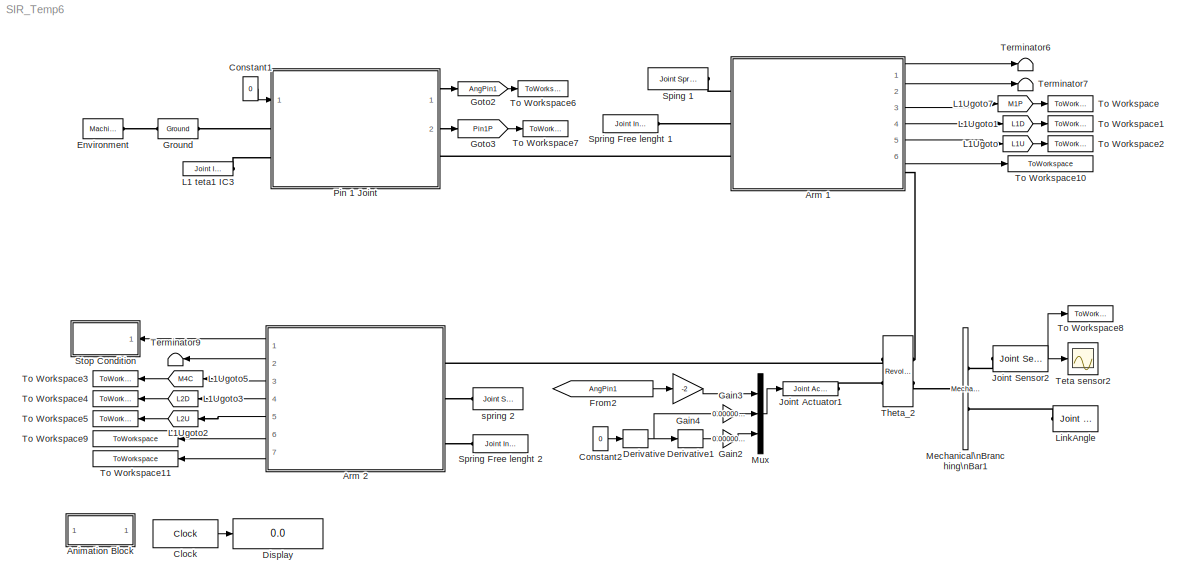
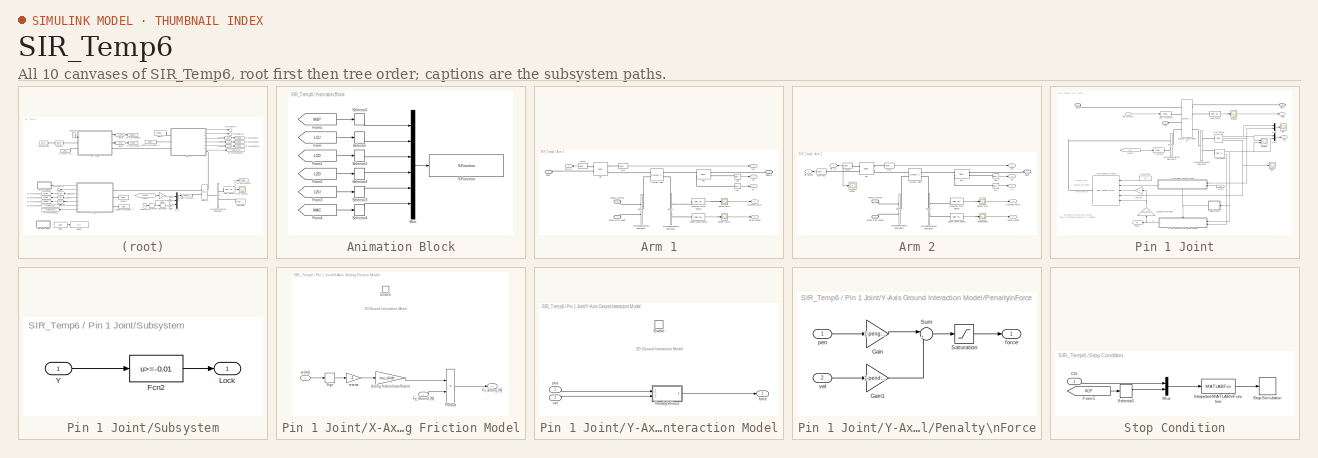
[diagram: thumbnail index - all 10 canvases of the model, root first then tree order]
MODEL SIR_Temp6
KIND model
CONFIG InitFcn = Initialization
BLOCK [SubSystem] Animation Block
  FunctionWithSeparateData = off
  MaskHideContents = off
  MinAlgLoopOccurrences = off
  Opaque = off
  Ports = []
  PropExecContextOutsideSubsystem = off
  RTWSystemCode = Auto
  RequestExecContextInheritance = off
  SID = 179
BLOCK [From] Animation Block/From
  CloseFcn = tagdialog Close
  GotoTag = L1U
  SID = 180
  TagVisibility = global
BLOCK [From] Animation Block/From1
  CloseFcn = tagdialog Close
  GotoTag = L1D
  SID = 181
  TagVisibility = global
BLOCK [From] Animation Block/From2
  CloseFcn = tagdialog Close
  GotoTag = L2D
  SID = 182
  TagVisibility = global
BLOCK [From] Animation Block/From3
  CloseFcn = tagdialog Close
  GotoTag = L2U
  SID = 183
  TagVisibility = global
BLOCK [From] Animation Block/From4
  CloseFcn = tagdialog Close
  GotoTag = M4C
  SID = 184
  TagVisibility = global
BLOCK [From] Animation Block/From5
  CloseFcn = tagdialog Close
  GotoTag = M1P
  SID = 320
  TagVisibility = global
BLOCK [Mux] Animation Block/Mux
  DisplayOption = bar
  Inputs = 6
  Ports = [6, 1]
  SID = 185
BLOCK [S-Function] Animation Block/S-Function
  EnableBusSupport = off
  FunctionName = AnimBotMulti
  Parameters = 0.001
  Ports = [1]
  SID = 186
BLOCK [Selector] Animation Block/Selector
  IndexOptions = Index vector (dialog)
  Indices = [1 2]
  InputPortWidth = 3
  OutputSizes = 1
  Ports = [1, 1]
  SID = 187
BLOCK [Selector] Animation Block/Selector1
  IndexOptions = Index vector (dialog)
  Indices = [1 2]
  InputPortWidth = 3
  OutputSizes = 1
  Ports = [1, 1]
  SID = 188
BLOCK [Selector] Animation Block/Selector2
  IndexOptions = Index vector (dialog)
  Indices = [1 2]
  InputPortWidth = 3
  OutputSizes = 1
  Ports = [1, 1]
  SID = 189
BLOCK [Selector] Animation Block/Selector3
  IndexOptions = Index vector (dialog)
  Indices = [1 2]
  InputPortWidth = 3
  OutputSizes = 1
  Ports = [1, 1]
  SID = 190
BLOCK [Selector] Animation Block/Selector4
  IndexOptions = Index vector (dialog)
  Indices = [1 2]
  InputPortWidth = 3
  OutputSizes = 1
  Ports = [1, 1]
  SID = 191
BLOCK [Selector] Animation Block/Selector5
  IndexOptions = Index vector (dialog)
  Indices = [1 2]
  InputPortWidth = 3
  OutputSizes = 1
  Ports = [1, 1]
  SID = 321
BLOCK [SubSystem] Arm 1
  FunctionWithSeparateData = off
  MaskHideContents = off
  MinAlgLoopOccurrences = off
  Opaque = off
  Ports = [0, 6, 0, 0, 0, 3, 1]
  PropExecContextOutsideSubsystem = off
  RTWSystemCode = Auto
  RequestExecContextInheritance = off
  SID = 692
BLOCK [PMIOPort] Arm 1/Base
  Port = 4
  SID = 695
  Side = Left
BLOCK [Reference] Arm 1/Custom Joint  REF=mblibv1/Joints/Custom Joint
  ClassName = Joint
  CutJoint = off
  DialogClass = JointBlock
  LConnTagsString = __newl0|SA1
  MarkAsCut = off
  NumSAPorts = 2
  P1Axis = [0 1 0]
  P2Axis = []
  P3Axis = []
  Ports = [0, 0, 0, 0, 0, 2, 2]
  PrimitiveProps = P1$World$[0 1 0]$Prismatic
  Primitives = prismatic
  R1Axis = []
  R2Axis = []
  R3Axis = []
  RConnTagsString = __newr0|SA1
  SAxis = []
  SID = 197
  SourceBlock = mblibv1/Joints/Custom Joint
  SourceType = Custom Joint
  UpdateFromCAD = off
BLOCK [PMIOPort] Arm 1/Follower
  Port = 3
  SID = 701
  Side = Right
BLOCK [Reference] Arm 1/L1D  REF=mblibv1/Sensors & \nActuators/Body Sensor
  Acceleration = off
  AccelerationUnits = m/s^2
  ActiveIO = on
  Angle = on
  AngleUnits = deg
  ArcAcceleration = off
  ArcAccelerationUnits = deg/s^2
  ArcVelocity = off
  ArcVelocityUnits = deg/s
  ClassName = BodySensor
  CoordPosition = on
  CoordPositionUnits = m
  DialogClass = MechanicalSensorBlock
  Muxed = on
  OutputVector = [1]
  PhysicalDomain = Mechanical
  PortType = blob
  Ports = [0, 1, 0, 0, 0, 1]
  Pose = off
  Quaternion = on
  QuaternionDDT = off
  QuaternionDT = off
  QuaternionUnits = off
  ReferenceFrame = Absolute (World)
  SID = 225
  SourceBlock = mblibv1/Sensors & \nActuators/Body Sensor
  SourceType = Body Sensor
  UpdateFromCAD = off
  Velocity = off
  VelocityUnits = m/s
  Width = 3
BLOCK [Reference] Arm 1/L1U  REF=mblibv1/Sensors & \nActuators/Body Sensor
  Acceleration = off
  AccelerationUnits = m/s^2
  ActiveIO = on
  Angle = on
  AngleUnits = deg
  ArcAcceleration = off
  ArcAccelerationUnits = deg/s^2
  ArcVelocity = off
  ArcVelocityUnits = deg/s
  ClassName = BodySensor
  CoordPosition = on
  CoordPositionUnits = m
  DialogClass = MechanicalSensorBlock
  Muxed = on
  OutputVector = [1]
  PhysicalDomain = Mechanical
  PortType = blob
  Ports = [0, 1, 0, 0, 0, 1]
  Pose = off
  Quaternion = on
  QuaternionDDT = off
  QuaternionDT = off
  QuaternionUnits = off
  ReferenceFrame = Absolute (World)
  SID = 226
  SourceBlock = mblibv1/Sensors & \nActuators/Body Sensor
  SourceType = Body Sensor
  UpdateFromCAD = off
  Velocity = off
  VelocityUnits = m/s
  Width = 3
BLOCK [Outport] Arm 1/LD
  IconDisplay = Port number
  Port = 4
  SID = 711
BLOCK [Reference] Arm 1/Link  REF=mblibv1/Bodies/Body
  AttachedToCS = CG
  BodyColor = [1 0 0]
  BodyColorSelMode = MACHINE_DEFAULT
  CG = Left$CG$[0 -0.25 0]$CS1$CS1$m$[0 0 0]$Euler X-Y-Z$deg$WORLD$false$none
  CGPos = [0 -0.25 0]
  CGRot = [0 0 0]
  CS0Pos = []
  CS0Rot = []
  CS10Pos = []
  CS10Rot = []
  CS11Pos = []
  CS11Rot = []
  CS12Pos = []
  CS12Rot = []
  CS13Pos = []
  CS13Rot = []
  CS14Pos = []
  CS14Rot = []
  CS15Pos = []
  CS15Rot = []
  CS16Pos = []
  CS16Rot = []
  CS17Pos = []
  CS17Rot = []
  CS18Pos = []
  CS18Rot = []
  CS19Pos = []
  CS19Rot = []
  CS1Pos = [0 0 0]
  CS1Rot = [0 0 0]
  CS20Pos = []
  CS20Rot = []
  CS2Pos = [0 -0.5 0]
  CS2Rot = [0 0 0]
  CS3Pos = [0 0 0]
  CS3Rot = [0 0 0]
  CS4Pos = [0 -0.5 0]
  CS4Rot = [0 0 0]
  CS5Pos = []
  CS5Rot = []
  CS6Pos = []
  CS6Rot = []
  CS7Pos = []
  CS7Rot = []
  CS8Pos = []
  CS8Rot = []
  CS9Pos = []
  CS9Rot = []
  ClassName = Body
  Density = 1
  DensityUnits = kg/m^3
  DensityUse = false
  DialogClass = MechanicalBodyBlock
  GraphicsMode = MACHINE_DEFAULT
  Inertia = mLink1/12*[lenLink1 0 0; 0 0 0; 0 0 lenLink1]
  InertiaUnits = kg*m^2
  LConnTagsString = CS1|CS3
  Mass = mLink1
  MassUnits = kg
  Ports = [0, 0, 0, 0, 0, 2, 2]
  RConnTagsString = CS2|CS4
  SID = 236
  Shape = Cylinder
  ShapeDims = [1 1]
  ShapeUnits = m
  ShapeUse = false
  SourceBlock = mblibv1/Bodies/Body
  SourceType = Body
  UpdateFromCAD = off
  WorkingFrames = Left$CS1$[0 0 0]$Adjoining$Adjoining$m$[0 0 0]$Euler X-Y-Z$deg$WORLD$true$none#Left$CS3$[0 0 0]$CS1$CS1$m$[0 0 0]$Euler X-Y-Z$deg$WORLD$true$none#Right$CS2$[0 -0.5 0]$CS1$CS1$m$[0 0 0]$Euler X-Y-Z$deg$WORLD$true$none#Right$CS4$[0 -0.5 0]$CS1$CS1$m$[0 0 0]$Euler X-Y-Z$deg$WORLD$true$none
BLOCK [Outport] Arm 1/Lu
  IconDisplay = Port number
  Port = 5
  SID = 712
BLOCK [Reference] Arm 1/M1P  REF=mblibv1/Sensors & \nActuators/Body Sensor
  Acceleration = off
  AccelerationUnits = m/s^2
  ActiveIO = on
  Angle = on
  AngleUnits = deg
  ArcAcceleration = off
  ArcAccelerationUnits = deg/s^2
  ArcVelocity = off
  ArcVelocityUnits = deg/s
  ClassName = BodySensor
  CoordPosition = on
  CoordPositionUnits = m
  DialogClass = MechanicalSensorBlock
  Muxed = on
  OutputVector = [1]
  PhysicalDomain = Mechanical
  PortType = blob
  Ports = [0, 1, 0, 0, 0, 1]
  Pose = off
  Quaternion = on
  QuaternionDDT = off
  QuaternionDT = off
  QuaternionUnits = off
  ReferenceFrame = Absolute (World)
  SID = 272
  SourceBlock = mblibv1/Sensors & \nActuators/Body Sensor
  SourceType = Body Sensor
  UpdateFromCAD = off
  Velocity = off
  VelocityUnits = m/s
  Width = 3
BLOCK [Reference] Arm 1/M1P1  REF=mblibv1/Sensors & \nActuators/Body Sensor
  Acceleration = on
  AccelerationUnits = m/s^2
  ActiveIO = on
  Angle = on
  AngleUnits = deg
  ArcAcceleration = off
  ArcAccelerationUnits = deg/s^2
  ArcVelocity = off
  ArcVelocityUnits = deg/s
  ClassName = BodySensor
  CoordPosition = off
  CoordPositionUnits = m
  DialogClass = MechanicalSensorBlock
  Muxed = on
  OutputVector = [1]
  PhysicalDomain = Mechanical
  PortType = blob
  Ports = [0, 1, 0, 0, 0, 1]
  Pose = off
  Quaternion = on
  QuaternionDDT = off
  QuaternionDT = off
  QuaternionUnits = off
  ReferenceFrame = Absolute (World)
  SID = 607
  SourceBlock = mblibv1/Sensors & \nActuators/Body Sensor
  SourceType = Body Sensor
  UpdateFromCAD = off
  Velocity = off
  VelocityUnits = m/s
  Width = 3
BLOCK [Outport] Arm 1/MP
  IconDisplay = Port number
  Port = 3
  SID = 707
BLOCK [Reference] Arm 1/Mechanical\nBranching\nBar1  REF=mblibv1/Utilities/Mechanical\nBranching\nBar
  ClassName = BranchingBar
  DialogClass = MechanicalBranchingBarBlock
  LConnTagsString = _newl0
  NumSAPorts = 2
  Ports = [0, 0, 0, 0, 0, 1, 2]
  RConnTagsString = __newr0|SA2
  SID = 244
  SourceBlock = mblibv1/Utilities/Mechanical\nBranching\nBar
  SourceType = Mechanical Branching Bar
  UpdateFromCAD = off
BLOCK [Reference] Arm 1/Mechanical\nBranching\nBar2  REF=mblibv1/Utilities/Mechanical\nBranching\nBar
  ClassName = BranchingBar
  DialogClass = MechanicalBranchingBarBlock
  LConnTagsString = _newl0
  NumSAPorts = 2
  Ports = [0, 0, 0, 0, 0, 1, 2]
  RConnTagsString = __newr0|SA2
  SID = 691
  SourceBlock = mblibv1/Utilities/Mechanical\nBranching\nBar
  SourceType = Mechanical Branching Bar
  UpdateFromCAD = off
BLOCK [Outport] Arm 1/Pin CG
  IconDisplay = Port number
  SID = 693
BLOCK [Outport] Arm 1/Reaction Force
  IconDisplay = Port number
  Port = 2
  SID = 694
BLOCK [Reference] Arm 1/Reaction Force Sensor   REF=mblibv1/Sensors & \nActuators/Joint Sensor
  Acceleration = off
  AccelerationUnits = m/s^2
  ActiveIO = on
  Angle = on
  AngleUnits = deg
  ArcAcceleration = off
  ArcAccelerationUnits = deg/s^2
  ArcVelocity = off
  ArcVelocityUnits = deg/s
  ClassName = JointSensor
  CoordPosition = off
  CoordPositionUnits = m
  DialogClass = MechanicalSensorBlock
  Force = off
  ForceUnits = N
  Muxed = off
  OutputVector = [1]
  PhysicalDomain = Mechanical
  PortType = blob
  Ports = [0, 1, 0, 0, 0, 1]
  Pose = off
  Primitive = P1
  Quaternion = on
  QuaternionDDT = off
  QuaternionDT = off
  QuaternionUnits = off
  ReactionForce = on
  ReactionForceUnits = N
  ReactionMoment = off
  ReactionMomentUnits = N*m
  ReactionReferenceFrame = Absolute (World)
  ReactionSensedSide = Base
  ReferenceFrame = Absolute (World)
  SID = 656
  SourceBlock = mblibv1/Sensors & \nActuators/Joint Sensor
  SourceType = Joint Sensor
  Torque = off
  TorqueUnits = N*m
  UpdateFromCAD = off
  Velocity = off
  VelocityUnits = m/s
  Width = 3
BLOCK [PMIOPort] Arm 1/Spring Contant
  Port = 1
  SID = 703
  Side = Left
BLOCK [PMIOPort] Arm 1/Spring Free Lenght
  Port = 2
  SID = 704
  Side = Left
BLOCK [Reference] Arm 1/Spring Lengh Sensor  REF=mblibv1/Sensors & \nActuators/Joint Sensor
  Acceleration = off
  AccelerationUnits = m/s^2
  ActiveIO = on
  Angle = on
  AngleUnits = deg
  ArcAcceleration = off
  ArcAccelerationUnits = deg/s^2
  ArcVelocity = off
  ArcVelocityUnits = deg/s
  ClassName = JointSensor
  CoordPosition = on
  CoordPositionUnits = m
  DialogClass = MechanicalSensorBlock
  Force = off
  ForceUnits = N
  Muxed = off
  OutputVector = [1]
  PhysicalDomain = Mechanical
  PortType = blob
  Ports = [0, 1, 0, 0, 0, 1]
  Pose = off
  Primitive = P1
  Quaternion = on
  QuaternionDDT = off
  QuaternionDT = off
  QuaternionUnits = off
  ReactionForce = off
  ReactionForceUnits = N
  ReactionMoment = off
  ReactionMomentUnits = N*m
  ReactionReferenceFrame = Absolute (World)
  ReactionSensedSide = Base
  ReferenceFrame = Absolute (World)
  SID = 699
  SourceBlock = mblibv1/Sensors & \nActuators/Joint Sensor
  SourceType = Joint Sensor
  Torque = off
  TorqueUnits = N*m
  UpdateFromCAD = off
  Velocity = off
  VelocityUnits = m/s
  Width = 1
BLOCK [Scope] Arm 1/Spring force
  DataFormat = StructureWithTime
  Floating = off
  LimitDataPoints = off
  NumInputPorts = 1
  Ports = [1]
  SID = 657
  SampleTime = 0
  SaveName = ScopeData22
  ShowLegends = off
  TimeRange = 0.45
  YMax = 1
  YMin = -10
BLOCK [Scope] Arm 1/Spring force1
  DataFormat = StructureWithTime
  Floating = off
  LimitDataPoints = off
  NumInputPorts = 1
  Ports = [1]
  SID = 700
  SampleTime = 0
  SaveName = ScopeData8
  ShowLegends = off
  TimeRange = 0.45
  YMax = 1
  YMin = -10
BLOCK [Outport] Arm 1/Sprng Lenght
  IconDisplay = Port number
  Port = 6
  SID = 1062
BLOCK [Reference] Arm 1/pin  REF=mblibv1/Bodies/Body
  AttachedToCS = CG
  BodyColor = [1 0 0]
  BodyColorSelMode = MACHINE_DEFAULT
  CG = Left$CG$[0 0 0]$CS3$CS3$m$[0 0 0]$Euler X-Y-Z$deg$WORLD$true$none
  CGPos = [0 0 0]
  CGRot = [0 0 0]
  CS0Pos = []
  CS0Rot = []
  CS10Pos = []
  CS10Rot = []
  CS11Pos = []
  CS11Rot = []
  CS12Pos = []
  CS12Rot = []
  CS13Pos = []
  CS13Rot = []
  CS14Pos = []
  CS14Rot = []
  CS15Pos = []
  CS15Rot = []
  CS16Pos = []
  CS16Rot = []
  CS17Pos = []
  CS17Rot = []
  CS18Pos = []
  CS18Rot = []
  CS19Pos = []
  CS19Rot = []
  CS1Pos = []
  CS1Rot = []
  CS20Pos = []
  CS20Rot = []
  CS2Pos = [0 0 0]
  CS2Rot = [0 0 0]
  CS3Pos = [0 0 0]
  CS3Rot = [0 0 0]
  CS4Pos = [0 0 0]
  CS4Rot = [0 0 0]
  CS5Pos = []
  CS5Rot = []
  CS6Pos = []
  CS6Rot = []
  CS7Pos = []
  CS7Rot = []
  CS8Pos = []
  CS8Rot = []
  CS9Pos = []
  CS9Rot = []
  ClassName = Body
  Density = 1
  DensityUnits = kg/m^3
  DensityUse = false
  DialogClass = MechanicalBodyBlock
  GraphicsMode = MACHINE_DEFAULT
  Inertia = 2/5*mPin1*(rPin1)^2*[1 0 0; 0 1 0; 0 0 1]
  InertiaUnits = kg*m^2
  LConnTagsString = CG|CS3
  Mass = mPin1
  MassUnits = kg
  Ports = [0, 0, 0, 0, 0, 2, 2]
  RConnTagsString = CS2|CS4
  SID = 400
  Shape = Cylinder
  ShapeDims = [1 1]
  ShapeUnits = m
  ShapeUse = false
  SourceBlock = mblibv1/Bodies/Body
  SourceType = Body
  UpdateFromCAD = off
  WorkingFrames = Left$CS3$[0 0 0]$Adjoining$Adjoining$m$[0 0 0]$Euler X-Y-Z$deg$WORLD$true$none#Right$CS2$[0 0 0]$CS3$CS3$m$[0 0 0]$Euler X-Y-Z$deg$WORLD$true$none#Right$CS4$[0 0 0]$CS3$CS3$m$[0 0 0]$Euler X-Y-Z$deg$WORLD$true$none
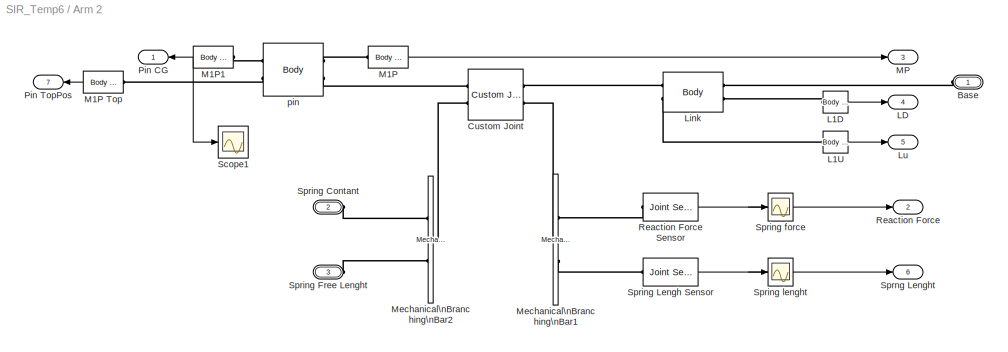
BLOCK [SubSystem] Arm 2
  FunctionWithSeparateData = off
  MaskHideContents = off
  MinAlgLoopOccurrences = off
  Opaque = off
  Ports = [0, 7, 0, 0, 0, 3]
  PropExecContextOutsideSubsystem = off
  RTWSystemCode = Auto
  RequestExecContextInheritance = off
  SID = 714
BLOCK [PMIOPort] Arm 2/Base
  Port = 1
  SID = 729
  Side = Left
BLOCK [Reference] Arm 2/Custom Joint  REF=mblibv1/Joints/Custom Joint
  ClassName = Joint
  CutJoint = off
  DialogClass = JointBlock
  LConnTagsString = __newl0|SA1
  MarkAsCut = off
  NumSAPorts = 2
  P1Axis = [0 1 0]
  P2Axis = []
  P3Axis = []
  Ports = [0, 0, 0, 0, 0, 2, 2]
  PrimitiveProps = P1$World$[0 1 0]$Prismatic
  Primitives = prismatic
  R1Axis = []
  R2Axis = []
  R3Axis = []
  RConnTagsString = __newr0|SA1
  SAxis = []
  SID = 715
  SourceBlock = mblibv1/Joints/Custom Joint
  SourceType = Custom Joint
  UpdateFromCAD = off
BLOCK [Reference] Arm 2/L1D  REF=mblibv1/Sensors & \nActuators/Body Sensor
  Acceleration = off
  AccelerationUnits = m/s^2
  ActiveIO = on
  Angle = on
  AngleUnits = deg
  ArcAcceleration = off
  ArcAccelerationUnits = deg/s^2
  ArcVelocity = off
  ArcVelocityUnits = deg/s
  ClassName = BodySensor
  CoordPosition = on
  CoordPositionUnits = m
  DialogClass = MechanicalSensorBlock
  Muxed = on
  OutputVector = [1]
  PhysicalDomain = Mechanical
  PortType = blob
  Ports = [0, 1, 0, 0, 0, 1]
  Pose = off
  Quaternion = on
  QuaternionDDT = off
  QuaternionDT = off
  QuaternionUnits = off
  ReferenceFrame = Absolute (World)
  SID = 716
  SourceBlock = mblibv1/Sensors & \nActuators/Body Sensor
  SourceType = Body Sensor
  UpdateFromCAD = off
  Velocity = off
  VelocityUnits = m/s
  Width = 3
BLOCK [Reference] Arm 2/L1U  REF=mblibv1/Sensors & \nActuators/Body Sensor
  Acceleration = off
  AccelerationUnits = m/s^2
  ActiveIO = on
  Angle = on
  AngleUnits = deg
  ArcAcceleration = off
  ArcAccelerationUnits = deg/s^2
  ArcVelocity = off
  ArcVelocityUnits = deg/s
  ClassName = BodySensor
  CoordPosition = on
  CoordPositionUnits = m
  DialogClass = MechanicalSensorBlock
  Muxed = on
  OutputVector = [1]
  PhysicalDomain = Mechanical
  PortType = blob
  Ports = [0, 1, 0, 0, 0, 1]
  Pose = off
  Quaternion = on
  QuaternionDDT = off
  QuaternionDT = off
  QuaternionUnits = off
  ReferenceFrame = Absolute (World)
  SID = 717
  SourceBlock = mblibv1/Sensors & \nActuators/Body Sensor
  SourceType = Body Sensor
  UpdateFromCAD = off
  Velocity = off
  VelocityUnits = m/s
  Width = 3
BLOCK [Outport] Arm 2/LD
  IconDisplay = Port number
  Port = 4
  SID = 735
BLOCK [Reference] Arm 2/Link  REF=mblibv1/Bodies/Body
  AttachedToCS = CG
  BodyColor = [1 0 0]
  BodyColorSelMode = MACHINE_DEFAULT
  CG = Left$CG$[0 0.25 0]$CS2$CS2$m$[0 0 0]$Euler X-Y-Z$deg$WORLD$false$none
  CGPos = [0 0.25 0]
  CGRot = [0 0 0]
  CS0Pos = []
  CS0Rot = []
  CS10Pos = []
  CS10Rot = []
  CS11Pos = []
  CS11Rot = []
  CS12Pos = []
  CS12Rot = []
  CS13Pos = []
  CS13Rot = []
  CS14Pos = []
  CS14Rot = []
  CS15Pos = []
  CS15Rot = []
  CS16Pos = []
  CS16Rot = []
  CS17Pos = []
  CS17Rot = []
  CS18Pos = []
  CS18Rot = []
  CS19Pos = []
  CS19Rot = []
  CS1Pos = [0 .5 0]
  CS1Rot = [0 0 0]
  CS20Pos = []
  CS20Rot = []
  CS2Pos = [0 0 0]
  CS2Rot = [0 0 0]
  CS3Pos = [0 .5 0]
  CS3Rot = [0 0 0]
  CS4Pos = [0 0 0]
  CS4Rot = [0 0 0]
  CS5Pos = []
  CS5Rot = []
  CS6Pos = []
  CS6Rot = []
  CS7Pos = []
  CS7Rot = []
  CS8Pos = []
  CS8Rot = []
  CS9Pos = []
  CS9Rot = []
  ClassName = Body
  Density = 1
  DensityUnits = kg/m^3
  DensityUse = false
  DialogClass = MechanicalBodyBlock
  GraphicsMode = MACHINE_DEFAULT
  Inertia = mLink2/12*[lenLink2 0 0; 0 0 0; 0 0 lenLink2]
  InertiaUnits = kg*m^2
  LConnTagsString = CS1|CS3
  Mass = mLink2
  MassUnits = kg
  Ports = [0, 0, 0, 0, 0, 2, 2]
  RConnTagsString = CS2|CS4
  SID = 718
  Shape = Cylinder
  ShapeDims = [1 1]
  ShapeUnits = m
  ShapeUse = false
  SourceBlock = mblibv1/Bodies/Body
  SourceType = Body
  UpdateFromCAD = off
  WorkingFrames = Left$CS1$[0 .5 0]$CS2$CS2$m$[0 0 0]$Euler X-Y-Z$deg$WORLD$true$none#Left$CS3$[0 .5 0]$CS2$CS2$m$[0 0 0]$Euler X-Y-Z$deg$WORLD$true$none#Right$CS2$[0 0 0]$Adjoining$Adjoining$m$[0 0 0]$Euler X-Y-Z$deg$WORLD$true$none#Right$CS4$[0 0 0]$CS2$CS2$m$[0 0 0]$Euler X-Y-Z$deg$WORLD$true$none
BLOCK [Outport] Arm 2/Lu
  IconDisplay = Port number
  Port = 5
  SID = 736
BLOCK [Reference] Arm 2/M1P  REF=mblibv1/Sensors & \nActuators/Body Sensor
  Acceleration = off
  AccelerationUnits = m/s^2
  ActiveIO = on
  Angle = on
  AngleUnits = deg
  ArcAcceleration = off
  ArcAccelerationUnits = deg/s^2
  ArcVelocity = off
  ArcVelocityUnits = deg/s
  ClassName = BodySensor
  CoordPosition = on
  CoordPositionUnits = m
  DialogClass = MechanicalSensorBlock
  Muxed = on
  OutputVector = [1]
  PhysicalDomain = Mechanical
  PortType = blob
  Ports = [0, 1, 0, 0, 0, 1]
  Pose = off
  Quaternion = on
  QuaternionDDT = off
  QuaternionDT = off
  QuaternionUnits = off
  ReferenceFrame = Absolute (World)
  SID = 719
  SourceBlock = mblibv1/Sensors & \nActuators/Body Sensor
  SourceType = Body Sensor
  UpdateFromCAD = off
  Velocity = off
  VelocityUnits = m/s
  Width = 3
BLOCK [Reference] Arm 2/M1P Top  REF=mblibv1/Sensors & \nActuators/Body Sensor
  Acceleration = off
  AccelerationUnits = m/s^2
  ActiveIO = on
  Angle = on
  AngleUnits = deg
  ArcAcceleration = off
  ArcAccelerationUnits = deg/s^2
  ArcVelocity = off
  ArcVelocityUnits = deg/s
  ClassName = BodySensor
  CoordPosition = on
  CoordPositionUnits = m
  DialogClass = MechanicalSensorBlock
  Muxed = on
  OutputVector = [1]
  PhysicalDomain = Mechanical
  PortType = blob
  Ports = [0, 1, 0, 0, 0, 1]
  Pose = off
  Quaternion = on
  QuaternionDDT = off
  QuaternionDT = off
  QuaternionUnits = off
  ReferenceFrame = Absolute (World)
  SID = 1068
  SourceBlock = mblibv1/Sensors & \nActuators/Body Sensor
  SourceType = Body Sensor
  UpdateFromCAD = off
  Velocity = on
  VelocityUnits = m/s
  Width = 6
BLOCK [Reference] Arm 2/M1P1  REF=mblibv1/Sensors & \nActuators/Body Sensor
  Acceleration = off
  AccelerationUnits = m/s^2
  ActiveIO = on
  Angle = on
  AngleUnits = deg
  ArcAcceleration = off
  ArcAccelerationUnits = deg/s^2
  ArcVelocity = off
  ArcVelocityUnits = deg/s
  ClassName = BodySensor
  CoordPosition = on
  CoordPositionUnits = m
  DialogClass = MechanicalSensorBlock
  Muxed = on
  OutputVector = [1]
  PhysicalDomain = Mechanical
  PortType = blob
  Ports = [0, 1, 0, 0, 0, 1]
  Pose = off
  Quaternion = on
  QuaternionDDT = off
  QuaternionDT = off
  QuaternionUnits = off
  ReferenceFrame = Absolute (World)
  SID = 720
  SourceBlock = mblibv1/Sensors & \nActuators/Body Sensor
  SourceType = Body Sensor
  UpdateFromCAD = off
  Velocity = on
  VelocityUnits = m/s
  Width = 6
BLOCK [Outport] Arm 2/MP
  IconDisplay = Port number
  Port = 3
  SID = 734
BLOCK [Reference] Arm 2/Mechanical\nBranching\nBar1  REF=mblibv1/Utilities/Mechanical\nBranching\nBar
  ClassName = BranchingBar
  DialogClass = MechanicalBranchingBarBlock
  LConnTagsString = _newl0
  NumSAPorts = 2
  Ports = [0, 0, 0, 0, 0, 1, 2]
  RConnTagsString = __newr0|SA2
  SID = 721
  SourceBlock = mblibv1/Utilities/Mechanical\nBranching\nBar
  SourceType = Mechanical Branching Bar
  UpdateFromCAD = off
BLOCK [Reference] Arm 2/Mechanical\nBranching\nBar2  REF=mblibv1/Utilities/Mechanical\nBranching\nBar
  ClassName = BranchingBar
  DialogClass = MechanicalBranchingBarBlock
  LConnTagsString = _newl0
  NumSAPorts = 2
  Ports = [0, 0, 0, 0, 0, 1, 2]
  RConnTagsString = __newr0|SA2
  SID = 722
  SourceBlock = mblibv1/Utilities/Mechanical\nBranching\nBar
  SourceType = Mechanical Branching Bar
  UpdateFromCAD = off
BLOCK [Outport] Arm 2/Pin CG
  IconDisplay = Port number
  SID = 732
BLOCK [Outport] Arm 2/Pin TopPos
  IconDisplay = Port number
  Port = 7
  SID = 1069
BLOCK [Outport] Arm 2/Reaction Force
  IconDisplay = Port number
  Port = 2
  SID = 733
BLOCK [Reference] Arm 2/Reaction Force Sensor   REF=mblibv1/Sensors & \nActuators/Joint Sensor
  Acceleration = off
  AccelerationUnits = m/s^2
  ActiveIO = on
  Angle = on
  AngleUnits = deg
  ArcAcceleration = off
  ArcAccelerationUnits = deg/s^2
  ArcVelocity = off
  ArcVelocityUnits = deg/s
  ClassName = JointSensor
  CoordPosition = off
  CoordPositionUnits = m
  DialogClass = MechanicalSensorBlock
  Force = off
  ForceUnits = N
  Muxed = off
  OutputVector = [1]
  PhysicalDomain = Mechanical
  PortType = blob
  Ports = [0, 1, 0, 0, 0, 1]
  Pose = off
  Primitive = P1
  Quaternion = on
  QuaternionDDT = off
  QuaternionDT = off
  QuaternionUnits = off
  ReactionForce = on
  ReactionForceUnits = N
  ReactionMoment = off
  ReactionMomentUnits = N*m
  ReactionReferenceFrame = Absolute (World)
  ReactionSensedSide = Base
  ReferenceFrame = Absolute (World)
  SID = 723
  SourceBlock = mblibv1/Sensors & \nActuators/Joint Sensor
  SourceType = Joint Sensor
  Torque = off
  TorqueUnits = N*m
  UpdateFromCAD = off
  Velocity = off
  VelocityUnits = m/s
  Width = 3
BLOCK [Scope] Arm 2/Scope1
  DataFormat = StructureWithTime
  Floating = off
  LimitDataPoints = off
  NumInputPorts = 1
  Ports = [1]
  SID = 1072
  SampleTime = 0
  SaveName = ScopeData2
  ShowLegends = off
  YMax = 2
  YMin = -2.75
  ZoomMode = yonly
BLOCK [PMIOPort] Arm 2/Spring Contant
  Port = 2
  SID = 730
  Side = Left
BLOCK [PMIOPort] Arm 2/Spring Free Lenght
  Port = 3
  SID = 731
  Side = Left
BLOCK [Reference] Arm 2/Spring Lengh Sensor  REF=mblibv1/Sensors & \nActuators/Joint Sensor
  Acceleration = off
  AccelerationUnits = m/s^2
  ActiveIO = on
  Angle = on
  AngleUnits = deg
  ArcAcceleration = off
  ArcAccelerationUnits = deg/s^2
  ArcVelocity = off
  ArcVelocityUnits = deg/s
  ClassName = JointSensor
  CoordPosition = on
  CoordPositionUnits = m
  DialogClass = MechanicalSensorBlock
  Force = off
  ForceUnits = N
  Muxed = off
  OutputVector = [1]
  PhysicalDomain = Mechanical
  PortType = blob
  Ports = [0, 1, 0, 0, 0, 1]
  Pose = off
  Primitive = P1
  Quaternion = on
  QuaternionDDT = off
  QuaternionDT = off
  QuaternionUnits = off
  ReactionForce = off
  ReactionForceUnits = N
  ReactionMoment = off
  ReactionMomentUnits = N*m
  ReactionReferenceFrame = Absolute (World)
  ReactionSensedSide = Base
  ReferenceFrame = Absolute (World)
  SID = 724
  SourceBlock = mblibv1/Sensors & \nActuators/Joint Sensor
  SourceType = Joint Sensor
  Torque = off
  TorqueUnits = N*m
  UpdateFromCAD = off
  Velocity = off
  VelocityUnits = m/s
  Width = 1
BLOCK [Scope] Arm 2/Spring force
  DataFormat = StructureWithTime
  Floating = off
  LimitDataPoints = off
  NumInputPorts = 1
  Ports = [1]
  SID = 725
  SampleTime = 0
  SaveName = ScopeData22
  ShowLegends = off
  TimeRange = 0.45
  YMax = 1
  YMin = -10
BLOCK [Scope] Arm 2/Spring lenght
  DataFormat = StructureWithTime
  Floating = off
  LimitDataPoints = off
  NumInputPorts = 1
  Ports = [1]
  SID = 726
  SampleTime = 0
  SaveName = ScopeData8
  ShowLegends = off
  TimeRange = 0.45
  YMax = 1
  YMin = -10
BLOCK [Outport] Arm 2/Sprng Lenght
  IconDisplay = Port number
  Port = 6
  SID = 1060
BLOCK [Reference] Arm 2/pin  REF=mblibv1/Bodies/Body
  AttachedToCS = CG
  BodyColor = [1 0 0]
  BodyColorSelMode = MACHINE_DEFAULT
  CG = Left$CG$[0 0.0 0]$CS4$CS4$m$[0 0 0]$Euler X-Y-Z$deg$WORLD$true$none
  CGPos = [0 0.0 0]
  CGRot = [0 0 0]
  CS0Pos = []
  CS0Rot = []
  CS10Pos = []
  CS10Rot = []
  CS11Pos = []
  CS11Rot = []
  CS12Pos = []
  CS12Rot = []
  CS13Pos = []
  CS13Rot = []
  CS14Pos = []
  CS14Rot = []
  CS15Pos = []
  CS15Rot = []
  CS16Pos = []
  CS16Rot = []
  CS17Pos = []
  CS17Rot = []
  CS18Pos = []
  CS18Rot = []
  CS19Pos = []
  CS19Rot = []
  CS1Pos = []
  CS1Rot = []
  CS20Pos = []
  CS20Rot = []
  CS2Pos = [0 0.0 0]
  CS2Rot = [0 0 0]
  CS3Pos = [0 0.0 0]
  CS3Rot = [0 0 0]
  CS4Pos = [0 0 0]
  CS4Rot = [0 0 0]
  CS5Pos = []
  CS5Rot = []
  CS6Pos = []
  CS6Rot = []
  CS7Pos = []
  CS7Rot = []
  CS8Pos = []
  CS8Rot = []
  CS9Pos = []
  CS9Rot = []
  ClassName = Body
  Density = 1
  DensityUnits = kg/m^3
  DensityUse = false
  DialogClass = MechanicalBodyBlock
  GraphicsMode = MACHINE_DEFAULT
  Inertia = 2/5*mPin1*(rPin1)^2*[1 0 0; 0 1 0; 0 0 1]
  InertiaUnits = kg*m^2
  LConnTagsString = CG|CS3
  Mass = mPin1
  MassUnits = kg
  Ports = [0, 0, 0, 0, 0, 2, 2]
  RConnTagsString = CS2|CS4
  SID = 727
  Shape = Cylinder
  ShapeDims = [1 1]
  ShapeUnits = m
  ShapeUse = false
  SourceBlock = mblibv1/Bodies/Body
  SourceType = Body
  UpdateFromCAD = off
  WorkingFrames = Left$CS3$[0 0.0 0]$CS4$CS4$m$[0 0 0]$Euler X-Y-Z$deg$WORLD$true$none#Right$CS2$[0 0.0 0]$CS4$CS4$m$[0 0 0]$Euler X-Y-Z$deg$WORLD$true$none#Right$CS4$[0 0 0]$Adjoining$Adjoining$m$[0 0 0]$Euler X-Y-Z$deg$WORLD$true$none
BLOCK [Clock] Clock
  Decimation = 100
  DisplayTime = on
  SID = 193
BLOCK [Constant] Constant1
  SID = 566
  Value = 0
BLOCK [Constant] Constant2
  SID = 1024
  Value = 0
BLOCK [Derivative] Derivative
  SID = 201
BLOCK [Derivative] Derivative1
  SID = 202
BLOCK [Display] Display
  Decimation = 100
  Lockdown = off
  Ports = [1]
  SID = 203
BLOCK [Reference] Environment  REF=mblibv1/Bodies/Machine\nEnvironment
  AnalysisType = Forward dynamics
  AngularAssemblyTolerance = 1e-3
  AngularAssemblyToleranceUnits = rad
  BodyColorSelMode = Use model default
  BodyVisualizationType = Use model default body geometries
  ClassName = Environment
  ConstraintAbsTolerance = 1e-4
  ConstraintRelTolerance = 1e-4
  ConstraintSolverType = Stabilizing
  DefaultBodyColor = [1 0 0]
  DialogTemplateClass = MECH.MachineEnvironment
  Dimensionality = 3D Only
  Gravity = [0 -g 0]
  GravityAsSignal = off
  GravityUnits = m/s^2
  LinearAssemblyTolerance = 1e-3
  LinearAssemblyToleranceUnits = m
  PerturbationSize = 1e-5
  PhysicalDomain = Mechanical
  PortType = env
  Ports = [0, 0, 0, 0, 0, 0, 1]
  RedundancyAnalysisTolerance = 1e-14
  RedundancyAnalysisToleranceType = Automatically select tolerance
  SID = 27
  SourceBlock = mblibv1/Bodies/Machine\nEnvironment
  SourceType = Machine Environment
  StatePerturbationType = Fixed
  SyncWhenCopied = off
  UseRobustSingularityHandling = off
  VisualizeMachine = on
BLOCK [From] From2
  CloseFcn = tagdialog Close
  GotoTag = AngPin1
  SID = 713
BLOCK [Gain] Gain2
  Gain = 0.00000001
  OutDataTypeStr = Inherit: Inherit via internal rule
  ParamDataTypeStr = Inherit: Inherit via internal rule
  SID = 209
  SaturateOnIntegerOverflow = off
BLOCK [Gain] Gain3
  Gain = 0.00000001
  OutDataTypeStr = Inherit: Inherit via internal rule
  ParamDataTypeStr = Inherit: Inherit via internal rule
  SID = 210
  SaturateOnIntegerOverflow = off
BLOCK [Gain] Gain4
  Gain = -2
  OutDataTypeStr = Inherit: Inherit via internal rule
  ParamDataTypeStr = Inherit: Inherit via internal rule
  SID = 211
  SaturateOnIntegerOverflow = off
BLOCK [Goto] Goto2
  GotoTag = AngPin1
  SID = 514
BLOCK [Goto] Goto3
  GotoTag = Pin1P
  SID = 795
  TagVisibility = global
BLOCK [Reference] Ground  REF=mblibv1/Bodies/Ground
  ClassName = Ground
  CoordPosition = [0 0 0]
  CoordPositionUnits = m
  DialogClass = GroundBlock
  LeftPortType = env
  MachineId = [1 0]
  PhysicalDomain = Mechanical
  Ports = [0, 0, 0, 0, 0, 1, 1]
  RightPortType = workingframe
  SID = 25
  ShowEnvPort = on
  SourceBlock = mblibv1/Bodies/Ground
  SourceType = Ground
  StateVectorMgrId = 0
  UpdateFromCAD = off
  UserData = DataTag0
  UserDataPersistent = on
BLOCK [Reference] Joint Actuator1  REF=mblibv1/Sensors & \nActuators/Joint Actuator
  AccelerationUnits = m/s^2
  ActiveIO = on
  ActuationStyle = Motion
  AngleUnits = deg
  ArcAccelerationUnits = deg/s^2
  ArcVelocityUnits = deg/s
  ClassName = JointActuator
  CoordPositionUnits = m
  DialogClass = MechanicalActuatorBlock
  ForceUnits = N
  PhysicalDomain = Mechanical
  PortType = blob
  Ports = [1, 0, 0, 0, 0, 0, 1]
  Primitive = R1
  ReferenceFrame = Absolute (World)
  SID = 214
  SourceBlock = mblibv1/Sensors & \nActuators/Joint Actuator
  SourceType = Joint Actuator
  TorqueUnits = N*m
  UpdateFromCAD = off
  VelocityUnits = m/s
  Width = 3
BLOCK [Reference] Joint Sensor2  REF=mblibv1/Sensors & \nActuators/Joint Sensor
  Acceleration = off
  AccelerationUnits = m/s^2
  ActiveIO = on
  Angle = on
  AngleUnits = deg
  ArcAcceleration = off
  ArcAccelerationUnits = deg/s^2
  ArcVelocity = off
  ArcVelocityUnits = deg/s
  ClassName = JointSensor
  CoordPosition = on
  CoordPositionUnits = m
  DialogClass = MechanicalSensorBlock
  Force = off
  ForceUnits = N
  Muxed = off
  OutputVector = [1]
  PhysicalDomain = Mechanical
  PortType = blob
  Ports = [0, 1, 0, 0, 0, 1]
  Pose = off
  Primitive = R1
  Quaternion = on
  QuaternionDDT = off
  QuaternionDT = off
  QuaternionUnits = off
  ReactionForce = off
  ReactionForceUnits = N
  ReactionMoment = off
  ReactionMomentUnits = N*m
  ReactionReferenceFrame = Absolute (World)
  ReactionSensedSide = Base
  ReferenceFrame = Absolute (World)
  SID = 217
  SourceBlock = mblibv1/Sensors & \nActuators/Joint Sensor
  SourceType = Joint Sensor
  Torque = off
  TorqueUnits = N*m
  UpdateFromCAD = off
  Velocity = off
  VelocityUnits = m/s
  Width = 1
BLOCK [Reference] L1 teta1  IC3  REF=mblibv1/Sensors & \nActuators/Joint Initial Condition
  ClassName = InitialCondition
  DialogClass = InitialConditionBlock
  InitialConditions = P1$true$0$m$deg$0$m/s$deg/s#P2$true$0$m$deg$0$m/s$deg/s#P3$false$0$m$deg$0$m/s$deg/s#R1$true$-80$m$deg$0$m/s$deg/s#R2$false$0$m$deg$0$m/s$deg/s#R3$false$0$m$deg$0$m/s$deg/s#S$false$0$m$deg$0$m/s$deg/s
  LeftPortType = blob
  P1PIC = 6.9328
  P1VIC = 0
  P2PIC = -7.7367e-05
  P2VIC = 0
  P3PIC = 0
  P3VIC = 0
  PhysicalDomain = mechanical
  Ports = [0, 0, 0, 0, 0, 0, 1]
  R1PIC = -28.22
  R1VIC = 0
  R2PIC = 0
  R2VIC = 0
  R3PIC = 0
  R3VIC = 0
  RightPortType = blob
  SID = 552
  SPIC = 0
  SVIC = 0
  SourceBlock = mblibv1/Sensors & \nActuators/Joint Initial Condition
  SourceType = Joint Initial Condition
  UpdateFromCAD = off
BLOCK [Goto] L1Ugoto
  GotoTag = L1U
  SID = 708
  TagVisibility = global
BLOCK [Goto] L1Ugoto1
  GotoTag = L1D
  SID = 709
  TagVisibility = global
BLOCK [Goto] L1Ugoto2
  GotoTag = L2U
  SID = 737
  TagVisibility = global
BLOCK [Goto] L1Ugoto3
  GotoTag = L2D
  SID = 738
  TagVisibility = global
BLOCK [Goto] L1Ugoto5
  GotoTag = M4C
  SID = 739
  TagVisibility = global
BLOCK [Goto] L1Ugoto7
  GotoTag = M1P
  SID = 710
  TagVisibility = global
BLOCK [Reference] LinkAngle  REF=mblibv1/Sensors & \nActuators/Joint Initial Condition
  ClassName = InitialCondition
  DialogClass = InitialConditionBlock
  InitialConditions = P1$false$-0.10$m$deg$0$m/s$deg/s#P2$false$0$m$deg$2$m/s$deg/s#P3$false$0$m$deg$0$m/s$deg/s#R1$true$-10$m$deg$0$m/s$deg/s#R2$false$0$m$deg$0$m/s$deg/s#R3$false$0$m$deg$0$m/s$deg/s#S$false$0$m$deg$0$m/s$deg/s
  LeftPortType = blob
  P1PIC = 0
  P1VIC = 0
  P2PIC = 0
  P2VIC = 0
  P3PIC = 0
  P3VIC = 0
  PhysicalDomain = mechanical
  Ports = [0, 0, 0, 0, 0, 0, 1]
  R1PIC = 56.44
  R1VIC = 0
  R2PIC = 0
  R2VIC = 0
  R3PIC = 0
  R3VIC = 0
  RightPortType = blob
  SID = 223
  SPIC = 0
  SVIC = 0
  SourceBlock = mblibv1/Sensors & \nActuators/Joint Initial Condition
  SourceType = Joint Initial Condition
  UpdateFromCAD = off
BLOCK [Reference] Mechanical\nBranching\nBar1  REF=mblibv1/Utilities/Mechanical\nBranching\nBar
  ClassName = BranchingBar
  DialogClass = MechanicalBranchingBarBlock
  LConnTagsString = _newl0
  NumSAPorts = 2
  Ports = [0, 0, 0, 0, 0, 1, 2]
  RConnTagsString = __newr0|SA2
  SID = 1045
  SourceBlock = mblibv1/Utilities/Mechanical\nBranching\nBar
  SourceType = Mechanical Branching Bar
  UpdateFromCAD = off
BLOCK [Mux] Mux
  DisplayOption = bar
  Inputs = 3
  Ports = [3, 1]
  SID = 245
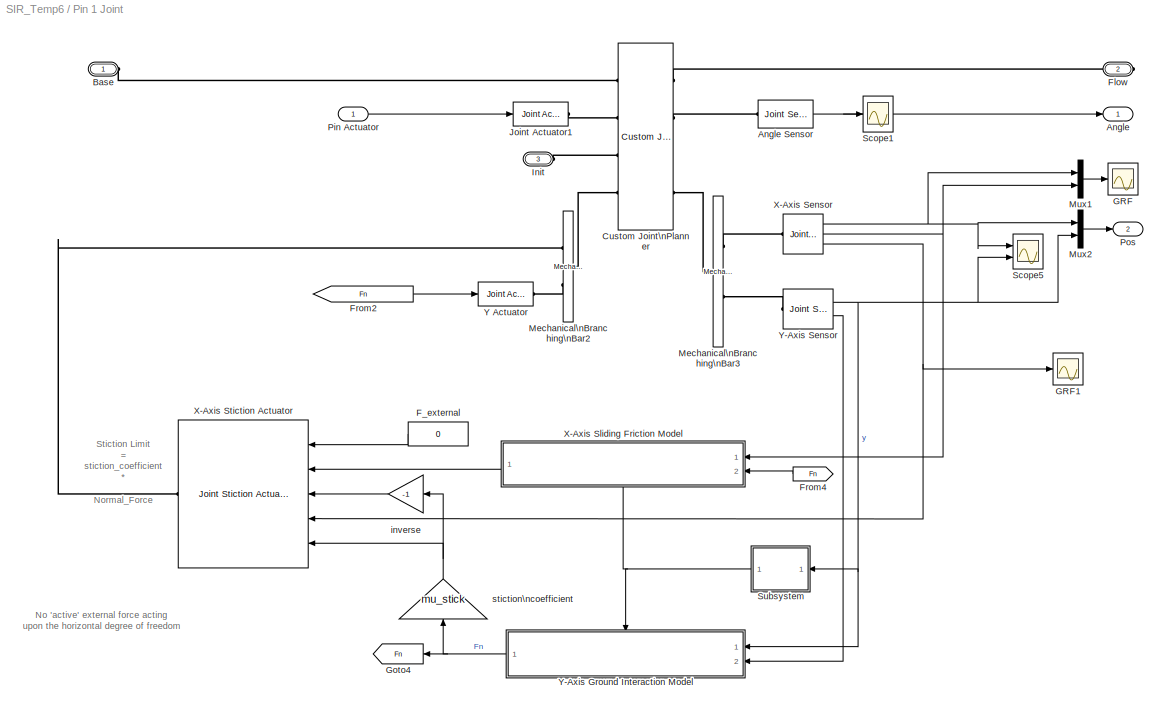
BLOCK [SubSystem] Pin 1 Joint
  FunctionWithSeparateData = off
  MaskHideContents = off
  MinAlgLoopOccurrences = off
  Opaque = off
  Ports = [1, 2, 0, 0, 0, 2, 1]
  PropExecContextOutsideSubsystem = off
  RTWSystemCode = Auto
  RequestExecContextInheritance = off
  SID = 562
BLOCK [Outport] Pin 1 Joint/Angle
  IconDisplay = Port number
  SID = 690
BLOCK [Reference] Pin 1 Joint/Angle Sensor  REF=mblibv1/Sensors & \nActuators/Joint Sensor
  Acceleration = off
  AccelerationUnits = m/s^2
  ActiveIO = on
  Angle = on
  AngleUnits = deg
  ArcAcceleration = off
  ArcAccelerationUnits = deg/s^2
  ArcVelocity = off
  ArcVelocityUnits = deg/s
  ClassName = JointSensor
  CoordPosition = on
  CoordPositionUnits = m
  DialogClass = MechanicalSensorBlock
  Force = off
  ForceUnits = N
  Muxed = off
  OutputVector = [1]
  PhysicalDomain = Mechanical
  PortType = blob
  Ports = [0, 1, 0, 0, 0, 1]
  Pose = off
  Primitive = R1
  Quaternion = on
  QuaternionDDT = off
  QuaternionDT = off
  QuaternionUnits = off
  ReactionForce = off
  ReactionForceUnits = N
  ReactionMoment = off
  ReactionMomentUnits = N*m
  ReactionReferenceFrame = Absolute (World)
  ReactionSensedSide = Base
  ReferenceFrame = Absolute (World)
  SID = 565
  SourceBlock = mblibv1/Sensors & \nActuators/Joint Sensor
  SourceType = Joint Sensor
  Torque = off
  TorqueUnits = N*m
  UpdateFromCAD = off
  Velocity = off
  VelocityUnits = m/s
  Width = 1
BLOCK [PMIOPort] Pin 1 Joint/Base
  Port = 1
  SID = 593
  Side = Left
BLOCK [Reference] Pin 1 Joint/Custom Joint\nPlanner  REF=mblibv1/Joints/Custom Joint
  ClassName = Joint
  CutJoint = off
  DialogClass = JointBlock
  LConnTagsString = __newl0|SA1|SA2|SA3
  MarkAsCut = off
  NumSAPorts = 6
  P1Axis = [ 1 0  0]
  P2Axis = [0 1 0 ]
  P3Axis = []
  Ports = [0, 0, 0, 0, 0, 4, 4]
  PrimitiveProps = P1$World$[ 1 0  0]$Prismatic#P2$World$[0 1 0 ]$Prismatic#R1$World$[0 0 1]$Revolute
  Primitives = prismatic
  R1Axis = [0 0 1]
  R2Axis = []
  R3Axis = []
  RConnTagsString = __newr0|SA1|SA2|SA3
  SAxis = []
  SID = 570
  SourceBlock = mblibv1/Joints/Custom Joint
  SourceType = Custom Joint
  UpdateFromCAD = off
BLOCK [Constant] Pin 1 Joint/F_external
  SID = 835
  Value = 0
BLOCK [PMIOPort] Pin 1 Joint/Flow
  Port = 2
  SID = 594
  Side = Right
BLOCK [From] Pin 1 Joint/From2
  CloseFcn = tagdialog Close
  GotoTag = Fn
  SID = 665
BLOCK [From] Pin 1 Joint/From4
  CloseFcn = tagdialog Close
  GotoTag = Fn
  SID = 892
BLOCK [Scope] Pin 1 Joint/GRF
  DataFormat = StructureWithTime
  Floating = off
  NumInputPorts = 1
  Ports = [1]
  SID = 836
  SampleTime = 0
  SaveName = ScopeData12
  ShowLegends = off
  TimeRange = 10
  YMax = 0
  YMin = -0.04
BLOCK [Scope] Pin 1 Joint/GRF1
  DataFormat = StructureWithTime
  Floating = off
  NumInputPorts = 1
  Ports = [1]
  SID = 980
  SampleTime = 0
  SaveName = ScopeData4
  ShowLegends = off
  TimeRange = 10
  YMax = 0
  YMin = -0.04
BLOCK [Goto] Pin 1 Joint/Goto4
  GotoTag = Fn
  SID = 891
BLOCK [PMIOPort] Pin 1 Joint/Init
  Port = 3
  SID = 595
  Side = Left
BLOCK [Reference] Pin 1 Joint/Joint Actuator1  REF=mblibv1/Sensors & \nActuators/Joint Actuator
  AccelerationUnits = m/s^2
  ActiveIO = on
  ActuationStyle = Force
  AngleUnits = deg
  ArcAccelerationUnits = deg/s^2
  ArcVelocityUnits = deg/s
  ClassName = JointActuator
  CoordPositionUnits = m
  DialogClass = MechanicalActuatorBlock
  ForceUnits = N
  PhysicalDomain = Mechanical
  PortType = blob
  Ports = [1, 0, 0, 0, 0, 0, 1]
  Primitive = R1
  ReferenceFrame = Absolute (World)
  SID = 572
  SourceBlock = mblibv1/Sensors & \nActuators/Joint Actuator
  SourceType = Joint Actuator
  TorqueUnits = N*m
  UpdateFromCAD = off
  VelocityUnits = m/s
  Width = 1
BLOCK [Reference] Pin 1 Joint/Mechanical\nBranching\nBar2  REF=mblibv1/Utilities/Mechanical\nBranching\nBar
  ClassName = BranchingBar
  DialogClass = MechanicalBranchingBarBlock
  LConnTagsString = _newl0
  NumSAPorts = 2
  Ports = [0, 0, 0, 0, 0, 1, 2]
  RConnTagsString = __newr0|SA2
  SID = 573
  SourceBlock = mblibv1/Utilities/Mechanical\nBranching\nBar
  SourceType = Mechanical Branching Bar
  UpdateFromCAD = off
BLOCK [Reference] Pin 1 Joint/Mechanical\nBranching\nBar3  REF=mblibv1/Utilities/Mechanical\nBranching\nBar
  ClassName = BranchingBar
  DialogClass = MechanicalBranchingBarBlock
  LConnTagsString = _newl0
  NumSAPorts = 2
  Ports = [0, 0, 0, 0, 0, 1, 2]
  RConnTagsString = __newr0|SA2
  SID = 574
  SourceBlock = mblibv1/Utilities/Mechanical\nBranching\nBar
  SourceType = Mechanical Branching Bar
  UpdateFromCAD = off
BLOCK [Mux] Pin 1 Joint/Mux1
  DisplayOption = bar
  Inputs = 2
  Ports = [2, 1]
  SID = 838
BLOCK [Mux] Pin 1 Joint/Mux2
  DisplayOption = bar
  Inputs = 2
  Ports = [2, 1]
  SID = 904
BLOCK [Inport] Pin 1 Joint/Pin Actuator
  IconDisplay = Port number
  SID = 1023
BLOCK [Outport] Pin 1 Joint/Pos
  IconDisplay = Port number
  Port = 2
  SID = 790
BLOCK [Scope] Pin 1 Joint/Scope1
  DataFormat = StructureWithTime
  Floating = off
  LimitDataPoints = off
  NumInputPorts = 1
  Ports = [1]
  SID = 689
  SampleTime = 0
  SaveName = ScopeData1
  ShowLegends = off
  TimeRange = 100
  YMax = 1
  YMin = -1.25
  ZoomMode = yonly
BLOCK [Scope] Pin 1 Joint/Scope5
  DataFormat = StructureWithTime
  Floating = off
  LimitDataPoints = off
  NumInputPorts = 2
  Ports = [2]
  SID = 579
  SampleTime = 0
  SaveName = ScopeData9
  ShowLegends = off
  TimeRange = 100
  YMax = -0.682344~-2e-05
  YMin = -0.682344~-0.00012
  ZoomMode = yonly
BLOCK [SubSystem] Pin 1 Joint/Subsystem
  FunctionWithSeparateData = off
  MaskHideContents = off
  MinAlgLoopOccurrences = off
  Opaque = off
  Ports = [1, 1]
  PropExecContextOutsideSubsystem = off
  RTWSystemCode = Auto
  RequestExecContextInheritance = off
  SID = 839
BLOCK [Fcn] Pin 1 Joint/Subsystem/Fcn2
  Expr = u>=-0.01
  SID = 841
BLOCK [Outport] Pin 1 Joint/Subsystem/Lock
  IconDisplay = Port number
  SID = 842
BLOCK [Inport] Pin 1 Joint/Subsystem/Y
  IconDisplay = Port number
  SID = 840
BLOCK [Reference] Pin 1 Joint/X-Axis Sensor  REF=mblibv1/Sensors & \nActuators/Joint Sensor
  Acceleration = off
  AccelerationUnits = m/s^2
  ActiveIO = on
  Angle = on
  AngleUnits = deg
  ArcAcceleration = off
  ArcAccelerationUnits = deg/s^2
  ArcVelocity = off
  ArcVelocityUnits = deg/s
  ClassName = JointSensor
  CoordPosition = on
  CoordPositionUnits = m
  DialogClass = MechanicalSensorBlock
  Force = on
  ForceUnits = N
  Muxed = off
  OutputVector = [ 1 1 1 ]
  PhysicalDomain = Mechanical
  PortType = blob
  Ports = [0, 3, 0, 0, 0, 1]
  Pose = off
  Primitive = P1
  Quaternion = on
  QuaternionDDT = off
  QuaternionDT = off
  QuaternionUnits = off
  ReactionForce = off
  ReactionForceUnits = N
  ReactionMoment = off
  ReactionMomentUnits = N*m
  ReactionReferenceFrame = Absolute (World)
  ReactionSensedSide = Base
  ReferenceFrame = Absolute (INERTIAL)
  SID = 843
  SourceBlock = mblibv1/Sensors & \nActuators/Joint Sensor
  SourceType = Joint Sensor
  Torque = off
  TorqueUnits = N*m
  UpdateFromCAD = off
  Velocity = on
  VelocityUnits = m/s
  Width = 3
BLOCK [SubSystem] Pin 1 Joint/X-Axis Sliding Friction Model
  FunctionWithSeparateData = off
  MaskHideContents = off
  MinAlgLoopOccurrences = on
  Opaque = off
  Ports = [2, 1, 1]
  PropExecContextOutsideSubsystem = off
  RTWSystemCode = Auto
  RequestExecContextInheritance = off
  SID = 844
BLOCK [EnablePort] Pin 1 Joint/X-Axis Sliding Friction Model/Enable
  Ports = []
  PropagateVarSize = During execution
  SID = 847
  StatesWhenEnabling = reset
  ZeroCross = off
BLOCK [Outport] Pin 1 Joint/X-Axis Sliding Friction Model/Fx_sliding [N]
  AttributesFormatString = initial = '%<InitialOutput>'\\nwhen disabled = '%<OutputWhenDisabled>'
  IconDisplay = Port number
  InitialOutput = 0
  OutputWhenDisabled = reset
  SID = 852
BLOCK [Inport] Pin 1 Joint/X-Axis Sliding Friction Model/Fy_Ground [N]
  IconDisplay = Port number
  Port = 2
  SID = 846
BLOCK [Product] Pin 1 Joint/X-Axis Sliding Friction Model/Product
  InputSameDT = off
  OutDataTypeStr = Inherit: Inherit via internal rule
  Ports = [2, 1]
  SID = 848
  SaturateOnIntegerOverflow = off
BLOCK [Signum] Pin 1 Joint/X-Axis Sliding Friction Model/Sign
  SID = 849
BLOCK [Gain] Pin 1 Joint/X-Axis Sliding Friction Model/reverse
  Gain = -1
  OutDataTypeStr = Inherit: Inherit via internal rule
  ParamDataTypeStr = Inherit: Inherit via internal rule
  SID = 850
  SaturateOnIntegerOverflow = off
BLOCK [Gain] Pin 1 Joint/X-Axis Sliding Friction Model/sliding friction\ncoefficient
  Gain = mu_slide
  OutDataTypeStr = Inherit: Inherit via internal rule
  ParamDataTypeStr = Inherit: Inherit via internal rule
  SID = 851
  SaturateOnIntegerOverflow = off
BLOCK [Inport] Pin 1 Joint/X-Axis Sliding Friction Model/vx [m//s]
  IconDisplay = Port number
  SID = 845
BLOCK [Reference] Pin 1 Joint/X-Axis Stiction Actuator  REF=mblibv1/Sensors & \nActuators/Joint Stiction Actuator
  AccelerationUnits = m/s^2
  ActiveIO = on
  ActuationStyle = Force
  AngleUnits = deg
  ArcAccelerationUnits = deg/s^2
  ArcVelocityUnits = deg/s
  ClassName = JointStictionActuator
  CoordPositionUnits = m
  DialogClass = EventActuatorBlock
  ExternalForceUnits = N
  ExternalTorqueUnits = N*m
  ForceUnits = N
  FrictionalForceUnits = N
  FrictionalTorqueUnits = N*m
  LockingTolerance = 1e-2
  PhysicalDomain = Mechanical
  PortType = blob
  Ports = [5, 0, 0, 0, 0, 0, 1]
  Primitive = P1
  SID = 853
  SourceBlock = mblibv1/Sensors & \nActuators/Joint Stiction Actuator
  SourceType = Joint Stiction Actuator
  TorqueUnits = N-m
  UpdateFromCAD = off
  VelocityUnits = m/s
  Width = 5
BLOCK [Reference] Pin 1 Joint/Y Actuator  REF=mblibv1/Sensors & \nActuators/Joint Actuator
  AccelerationUnits = m/s^2
  ActiveIO = on
  ActuationStyle = Force
  AngleUnits = deg
  ArcAccelerationUnits = deg/s^2
  ArcVelocityUnits = deg/s
  ClassName = JointActuator
  CoordPositionUnits = m
  DialogClass = MechanicalActuatorBlock
  ForceUnits = N
  PhysicalDomain = Mechanical
  PortType = blob
  Ports = [1, 0, 0, 0, 0, 0, 1]
  Primitive = P2
  ReferenceFrame = Absolute (World)
  SID = 591
  SourceBlock = mblibv1/Sensors & \nActuators/Joint Actuator
  SourceType = Joint Actuator
  TorqueUnits = N*m
  UpdateFromCAD = off
  VelocityUnits = m/s
  Width = 1
BLOCK [SubSystem] Pin 1 Joint/Y-Axis Ground Interaction Model
  FunctionWithSeparateData = off
  MaskHideContents = off
  MinAlgLoopOccurrences = off
  Opaque = off
  Ports = [2, 1, 1]
  PropExecContextOutsideSubsystem = off
  RTWSystemCode = Auto
  RequestExecContextInheritance = off
  SID = 855
BLOCK [EnablePort] Pin 1 Joint/Y-Axis Ground Interaction Model/Enable
  Ports = []
  PropagateVarSize = During execution
  SID = 858
  StatesWhenEnabling = reset
  ZeroCross = off
BLOCK [SubSystem] Pin 1 Joint/Y-Axis Ground Interaction Model/Penalty\nForce
  FunctionWithSeparateData = off
  MaskHideContents = off
  MinAlgLoopOccurrences = off
  Opaque = off
  Ports = [2, 1]
  PropExecContextOutsideSubsystem = off
  RTWSystemCode = Auto
  RequestExecContextInheritance = off
  SID = 895
  TreatAsAtomicUnit = on
BLOCK [Gain] Pin 1 Joint/Y-Axis Ground Interaction Model/Penalty\nForce/Gain
  Gain = [ -pengain]
  Multiplication = Matrix(K*u)
  SID = 898
BLOCK [Gain] Pin 1 Joint/Y-Axis Ground Interaction Model/Penalty\nForce/Gain1
  Gain = [ -pendamp]
  Multiplication = Matrix(K*u)
  SID = 899
BLOCK [Saturate] Pin 1 Joint/Y-Axis Ground Interaction Model/Penalty\nForce/Saturation
  InputPortMap = u0
  LowerLimit = 0
  Ports = [1, 1]
  SID = 900
  UpperLimit = inf
BLOCK [Sum] Pin 1 Joint/Y-Axis Ground Interaction Model/Penalty\nForce/Sum
  IconShape = round
  InputSameDT = off
  Inputs = |++
  OutDataTypeStr = Inherit: Inherit via internal rule
  Ports = [2, 1]
  SID = 901
BLOCK [Outport] Pin 1 Joint/Y-Axis Ground Interaction Model/Penalty\nForce/force
  IconDisplay = Port number
  InitialOutput = 0
  SID = 902
BLOCK [Inport] Pin 1 Joint/Y-Axis Ground Interaction Model/Penalty\nForce/pen
  IconDisplay = Port number
  SID = 896
BLOCK [Inport] Pin 1 Joint/Y-Axis Ground Interaction Model/Penalty\nForce/vel
  IconDisplay = Port number
  Port = 2
  SID = 897
BLOCK [Outport] Pin 1 Joint/Y-Axis Ground Interaction Model/force
  IconDisplay = Port number
  SID = 903
BLOCK [Inport] Pin 1 Joint/Y-Axis Ground Interaction Model/pos
  IconDisplay = Port number
  SID = 893
BLOCK [Inport] Pin 1 Joint/Y-Axis Ground Interaction Model/vel
  IconDisplay = Port number
  Port = 2
  SID = 894
BLOCK [Reference] Pin 1 Joint/Y-Axis Sensor  REF=mblibv1/Sensors & \nActuators/Joint Sensor
  Acceleration = off
  AccelerationUnits = m/s^2
  ActiveIO = on
  Angle = on
  AngleUnits = deg
  ArcAcceleration = off
  ArcAccelerationUnits = deg/s^2
  ArcVelocity = off
  ArcVelocityUnits = deg/s
  ClassName = JointSensor
  CoordPosition = on
  CoordPositionUnits = m
  DialogClass = MechanicalSensorBlock
  Force = off
  ForceUnits = N
  Muxed = off
  OutputVector = [ 1 1 ]
  PhysicalDomain = Mechanical
  PortType = blob
  Ports = [0, 2, 0, 0, 0, 1]
  Pose = off
  Primitive = P2
  Quaternion = on
  QuaternionDDT = off
  QuaternionDT = off
  QuaternionUnits = off
  ReactionForce = off
  ReactionForceUnits = N
  ReactionMoment = off
  ReactionMomentUnits = N*m
  ReactionReferenceFrame = Absolute (World)
  ReactionSensedSide = Base
  ReferenceFrame = Absolute (INERTIAL)
  SID = 865
  SourceBlock = mblibv1/Sensors & \nActuators/Joint Sensor
  SourceType = Joint Sensor
  Torque = off
  TorqueUnits = N*m
  UpdateFromCAD = off
  Velocity = on
  VelocityUnits = m/s
  Width = 2
BLOCK [Gain] Pin 1 Joint/inverse
  Gain = -1
  OutDataTypeStr = Inherit: Inherit via internal rule
  ParamDataTypeStr = Inherit: Inherit via internal rule
  SID = 866
  SaturateOnIntegerOverflow = off
BLOCK [Gain] Pin 1 Joint/stiction\ncoefficient
  Gain = mu_stick
  OutDataTypeStr = Inherit: Inherit via internal rule
  ParamDataTypeStr = Inherit: Inherit via internal rule
  SID = 867
  SaturateOnIntegerOverflow = off
BLOCK [Reference] Sping 1  REF=mblibv1/Force \nElements/Joint Spring & Damper
  ClassName = JointSpringDamper
  DialogClass = JointSpringDamper
  JFEParameters = P1$true$sK1$0$sFl1$m$m/s$N$deg$deg/s$N*m#P2$false$0$0$0$m$m/s$N$deg$deg/s$N*m#P3$false$0$0$0$m$m/s$N$deg$deg/s$N*m#R1$false$0$.02$0$m$m/s$N$deg$deg/s$N*m#R2$false$0$0$0$m$m/s$N$deg$deg/s$N*m#R3$false$0$0$0$m$m/s$N$deg$deg/s$N*m#S$false$0$0$0$m$m/s$N$deg$deg/s$N*m
  Ports = [0, 0, 0, 0, 0, 1]
  SID = 705
  SourceBlock = mblibv1/Force \nElements/Joint Spring & Damper
  SourceType = Joint Spring & Damper
  UpdateFromCAD = off
BLOCK [Reference] Spring Free lenght  1  REF=mblibv1/Sensors & \nActuators/Joint Initial Condition
  ClassName = InitialCondition
  DialogClass = InitialConditionBlock
  InitialConditions = P1$true$sFInit1$m$deg$0$m/s$deg/s#P2$false$0$m$deg$2$m/s$deg/s#P3$false$0$m$deg$0$m/s$deg/s#R1$false$-65$m$deg$0$m/s$deg/s#R2$false$0$m$deg$0$m/s$deg/s#R3$false$0$m$deg$0$m/s$deg/s#S$false$0$m$deg$0$m/s$deg/s
  LeftPortType = blob
  P1PIC = -0.10318
  P1VIC = 0
  P2PIC = 0
  P2VIC = 0
  P3PIC = 0
  P3VIC = 0
  PhysicalDomain = mechanical
  Ports = [0, 0, 0, 0, 0, 0, 1]
  R1PIC = 0
  R1VIC = 0
  R2PIC = 0
  R2VIC = 0
  R3PIC = 0
  R3VIC = 0
  RightPortType = blob
  SID = 706
  SPIC = 0
  SVIC = 0
  SourceBlock = mblibv1/Sensors & \nActuators/Joint Initial Condition
  SourceType = Joint Initial Condition
  UpdateFromCAD = off
BLOCK [Reference] Spring Free lenght  2  REF=mblibv1/Sensors & \nActuators/Joint Initial Condition
  ClassName = InitialCondition
  DialogClass = InitialConditionBlock
  InitialConditions = P1$true$sFInit2$m$deg$0$m/s$deg/s#P2$false$0$m$deg$2$m/s$deg/s#P3$false$0$m$deg$0$m/s$deg/s#R1$false$-65$m$deg$0$m/s$deg/s#R2$false$0$m$deg$0$m/s$deg/s#R3$false$0$m$deg$0$m/s$deg/s#S$false$0$m$deg$0$m/s$deg/s
  LeftPortType = blob
  P1PIC = -0.11457
  P1VIC = 0
  P2PIC = 0
  P2VIC = 0
  P3PIC = 0
  P3VIC = 0
  PhysicalDomain = mechanical
  Ports = [0, 0, 0, 0, 0, 0, 1]
  R1PIC = 0
  R1VIC = 0
  R2PIC = 0
  R2VIC = 0
  R3PIC = 0
  R3VIC = 0
  RightPortType = blob
  SID = 743
  SPIC = 0
  SVIC = 0
  SourceBlock = mblibv1/Sensors & \nActuators/Joint Initial Condition
  SourceType = Joint Initial Condition
  UpdateFromCAD = off
BLOCK [SubSystem] Stop Condition
  FunctionWithSeparateData = off
  MaskHideContents = off
  MinAlgLoopOccurrences = off
  Opaque = off
  Ports = [1]
  PropExecContextOutsideSubsystem = off
  RTWSystemCode = Auto
  RequestExecContextInheritance = off
  SID = 1027
BLOCK [Inport] Stop Condition/CG
  IconDisplay = Port number
  SID = 1043
BLOCK [From] Stop Condition/From5
  CloseFcn = tagdialog Close
  GotoTag = M1P
  SID = 1065
  TagVisibility = global
BLOCK [MATLABFcn] Stop Condition/Interpreted MATLAB\nFunction
  MATLABFcn = StopConditionMonitoring
  Output1D = off
  OutputDimensions = 1
  OutputSignalType = real
  Ports = [1, 1]
  SID = 1049
BLOCK [Mux] Stop Condition/Mux
  DisplayOption = bar
  Inputs = 2
  Ports = [2, 1]
  SID = 1067
BLOCK [Selector] Stop Condition/Selector5
  IndexOptions = Index vector (dialog)
  Indices = [1]
  InputPortWidth = 3
  OutputSizes = 1
  Ports = [1, 1]
  SID = 1066
BLOCK [Stop] Stop Condition/Stop Simulation
  SID = 1025
BLOCK [Terminator] Terminator6
  SID = 905
BLOCK [Terminator] Terminator7
  SID = 906
BLOCK [Terminator] Terminator9
  SID = 976
BLOCK [Scope] Teta sensor2
  DataFormat = StructureWithTime
  Floating = off
  LimitDataPoints = off
  NumInputPorts = 1
  Ports = [1]
  SID = 262
  SampleTime = 0
  SaveName = ScopeData6
  ShowLegends = off
  TimeRange = 10
  YMax = 77.25
  YMin = 74.25
BLOCK [Reference] Theta_2  REF=mblibv1/Joints/Revolute
  ClassName = Joint
  CutJoint = off
  DialogClass = JointBlock
  LConnTagsString = __newl0|SA1
  MarkAsCut = off
  NumSAPorts = 2
  Ports = [0, 0, 0, 0, 0, 2, 2]
  PrimitiveProps = R1$Base$[0 0 1]$revolute
  Primitives = prismatic
  R1Axis = [0 0 1]
  RConnTagsString = __newr0|SA1
  SID = 264
  SourceBlock = mblibv1/Joints/Revolute
  SourceType = Revolute
  UpdateFromCAD = off
BLOCK [ToWorkspace] To Workspace
  MaxDataPoints = inf
  Ports = [1]
  SID = 1051
  SampleTime = -1
  SaveFormat = Structure With Time
  VariableName = M1P
BLOCK [ToWorkspace] To Workspace1
  MaxDataPoints = inf
  Ports = [1]
  SID = 1052
  SampleTime = -1
  SaveFormat = Structure With Time
  VariableName = L1D
BLOCK [ToWorkspace] To Workspace10
  MaxDataPoints = inf
  Ports = [1]
  SID = 1063
  SampleTime = -1
  SaveFormat = Structure With Time
  VariableName = SpringLength1
BLOCK [ToWorkspace] To Workspace11
  MaxDataPoints = inf
  Ports = [1]
  SID = 1070
  SampleTime = -1
  SaveFormat = Structure With Time
  VariableName = Pin2PosTop
BLOCK [ToWorkspace] To Workspace2
  MaxDataPoints = inf
  Ports = [1]
  SID = 1053
  SampleTime = -1
  SaveFormat = Structure With Time
  VariableName = L1U
BLOCK [ToWorkspace] To Workspace3
  MaxDataPoints = inf
  Ports = [1]
  SID = 1054
  SampleTime = -1
  SaveFormat = Structure With Time
  VariableName = M4C
BLOCK [ToWorkspace] To Workspace4
  MaxDataPoints = inf
  Ports = [1]
  SID = 1055
  SampleTime = -1
  SaveFormat = Structure With Time
  VariableName = L2D
BLOCK [ToWorkspace] To Workspace5
  MaxDataPoints = inf
  Ports = [1]
  SID = 1056
  SampleTime = -1
  SaveFormat = Structure With Time
  VariableName = L2U
BLOCK [ToWorkspace] To Workspace6
  MaxDataPoints = inf
  Ports = [1]
  SID = 1057
  SampleTime = -1
  SaveFormat = Structure With Time
  VariableName = AngPin1
BLOCK [ToWorkspace] To Workspace7
  MaxDataPoints = inf
  Ports = [1]
  SID = 1058
  SampleTime = -1
  SaveFormat = Structure With Time
  VariableName = M1PTop
BLOCK [ToWorkspace] To Workspace8
  MaxDataPoints = inf
  Ports = [1]
  SID = 1059
  SampleTime = -1
  SaveFormat = Structure With Time
  VariableName = Theta
BLOCK [ToWorkspace] To Workspace9
  MaxDataPoints = inf
  Ports = [1]
  SID = 1061
  SampleTime = -1
  SaveFormat = Structure With Time
  VariableName = SpringLength2
BLOCK [Reference] spring 2  REF=mblibv1/Force \nElements/Joint Spring & Damper
  ClassName = JointSpringDamper
  DialogClass = JointSpringDamper
  JFEParameters = P1$true$sK2$0$sFl2$m$m/s$N$deg$deg/s$N*m#P2$false$0$0$0$m$m/s$N$deg$deg/s$N*m#P3$false$0$0$0$m$m/s$N$deg$deg/s$N*m#R1$false$0$0$0$m$m/s$N$deg$deg/s$N*m#R2$false$0$0$0$m$m/s$N$deg$deg/s$N*m#R3$false$0$0$0$m$m/s$N$deg$deg/s$N*m#S$false$0$0$0$m$m/s$N$deg$deg/s$N*m
  Ports = [0, 0, 0, 0, 0, 1]
  SID = 740
  SourceBlock = mblibv1/Force \nElements/Joint Spring & Damper
  SourceType = Joint Spring & Damper
  UpdateFromCAD = off
ANNOTATION Pin 1 Joint: No 'active' external force acting \nupon the horizontal degree of freedom
ANNOTATION Pin 1 Joint: Stiction Limit\n=\nstiction_coefficient\n*\nNormal_Force
ANNOTATION Pin 1 Joint/X-Axis Sliding Friction Model: 2D Ground Interaction Model
ANNOTATION Pin 1 Joint/Y-Axis Ground Interaction Model: 2D Ground Interaction Model
LINE Animation Block/From1:1 -> Animation Block/Selector1:1
LINE Animation Block/From2:1 -> Animation Block/Selector2:1
LINE Animation Block/From3:1 -> Animation Block/Selector3:1
LINE Animation Block/From4:1 -> Animation Block/Selector4:1
LINE Animation Block/From5:1 -> Animation Block/Selector5:1
LINE Animation Block/From:1 -> Animation Block/Selector:1
LINE Animation Block/Mux:1 -> Animation Block/S-Function:1
LINE Animation Block/Selector1:1 -> Animation Block/Mux:3
LINE Animation Block/Selector2:1 -> Animation Block/Mux:4
LINE Animation Block/Selector3:1 -> Animation Block/Mux:5
LINE Animation Block/Selector4:1 -> Animation Block/Mux:6
LINE Animation Block/Selector5:1 -> Animation Block/Mux:1
LINE Animation Block/Selector:1 -> Animation Block/Mux:2
LINE Arm 1/L1D:1 -> Arm 1/LD:1
LINE Arm 1/L1U:1 -> Arm 1/Lu:1
LINE Arm 1/M1P1:1 -> Arm 1/Pin CG:1
LINE Arm 1/M1P:1 -> Arm 1/MP:1
NET Arm 1/Reaction Force Sensor :1 -> Arm 1/Reaction Force:1, Arm 1/Spring force:1
NET Arm 1/Spring Lengh Sensor:1 -> Arm 1/Spring force1:1, Arm 1/Sprng Lenght:1
LINE Arm 1:1 -> Terminator6:1
LINE Arm 1:2 -> Terminator7:1
NET Arm 1:3 -> L1Ugoto7:1, To Workspace:1
NET Arm 1:4 -> L1Ugoto1:1, To Workspace1:1
NET Arm 1:5 -> L1Ugoto:1, To Workspace2:1
LINE Arm 1:6 -> To Workspace10:1
LINE Arm 2/L1D:1 -> Arm 2/LD:1
LINE Arm 2/L1U:1 -> Arm 2/Lu:1
LINE Arm 2/M1P Top:1 -> Arm 2/Pin TopPos:1
NET Arm 2/M1P1:1 -> Arm 2/Pin CG:1, Arm 2/Scope1:1
LINE Arm 2/M1P:1 -> Arm 2/MP:1
NET Arm 2/Reaction Force Sensor :1 -> Arm 2/Reaction Force:1, Arm 2/Spring force:1
NET Arm 2/Spring Lengh Sensor:1 -> Arm 2/Spring lenght:1, Arm 2/Sprng Lenght:1
LINE Arm 2:1 -> Stop Condition:1
LINE Arm 2:2 -> Terminator9:1
NET Arm 2:3 -> L1Ugoto5:1, To Workspace3:1
NET Arm 2:4 -> L1Ugoto3:1, To Workspace4:1
NET Arm 2:5 -> L1Ugoto2:1, To Workspace5:1
LINE Arm 2:6 -> To Workspace9:1
LINE Arm 2:7 -> To Workspace11:1
LINE Clock:1 -> Display:1
LINE Constant1:1 -> Pin 1 Joint:1
LINE Constant2:1 -> Derivative:1
LINE Derivative1:1 -> Gain2:1
NET Derivative:1 -> Derivative1:1, Gain3:1
LINE From2:1 -> Gain4:1
LINE Gain2:1 -> Mux:3
LINE Gain3:1 -> Mux:2
LINE Gain4:1 -> Mux:1
NET Joint Sensor2:1 -> Teta sensor2:1, To Workspace8:1
LINE Mux:1 -> Joint Actuator1:1
NET Pin 1 Joint/Angle Sensor:1 -> Pin 1 Joint/Angle:1, Pin 1 Joint/Scope1:1
LINE Pin 1 Joint/F_external:1 -> Pin 1 Joint/X-Axis Stiction Actuator:1
LINE Pin 1 Joint/From2:1 -> Pin 1 Joint/Y Actuator:1
LINE Pin 1 Joint/From4:1 -> Pin 1 Joint/X-Axis Sliding Friction Model:2
LINE Pin 1 Joint/Mux1:1 -> Pin 1 Joint/GRF:1
LINE Pin 1 Joint/Mux2:1 -> Pin 1 Joint/Pos:1
LINE Pin 1 Joint/Pin Actuator:1 -> Pin 1 Joint/Joint Actuator1:1
LINE Pin 1 Joint/Subsystem/Fcn2:1 -> Pin 1 Joint/Subsystem/Lock:1
LINE Pin 1 Joint/Subsystem/Y:1 -> Pin 1 Joint/Subsystem/Fcn2:1
NET Pin 1 Joint/Subsystem:1 -> Pin 1 Joint/X-Axis Sliding Friction Model:enable, Pin 1 Joint/Y-Axis Ground Interaction Model:enable
NET Pin 1 Joint/X-Axis Sensor:1 -> Pin 1 Joint/Mux1:1, Pin 1 Joint/Mux2:1, Pin 1 Joint/Scope5:1
NET Pin 1 Joint/X-Axis Sensor:2 -> Pin 1 Joint/Mux1:2, Pin 1 Joint/X-Axis Sliding Friction Model:1
NET Pin 1 Joint/X-Axis Sensor:3 -> Pin 1 Joint/GRF1:1, Pin 1 Joint/X-Axis Stiction Actuator:4
LINE Pin 1 Joint/X-Axis Sliding Friction Model/Fy_Ground [N]:1 -> Pin 1 Joint/X-Axis Sliding Friction Model/Product:2
LINE Pin 1 Joint/X-Axis Sliding Friction Model/Product:1 -> Pin 1 Joint/X-Axis Sliding Friction Model/Fx_sliding [N]:1
LINE Pin 1 Joint/X-Axis Sliding Friction Model/Sign:1 -> Pin 1 Joint/X-Axis Sliding Friction Model/reverse:1
LINE Pin 1 Joint/X-Axis Sliding Friction Model/reverse:1 -> Pin 1 Joint/X-Axis Sliding Friction Model/sliding friction\ncoefficient:1
LINE Pin 1 Joint/X-Axis Sliding Friction Model/sliding friction\ncoefficient:1 -> Pin 1 Joint/X-Axis Sliding Friction Model/Product:1
LINE Pin 1 Joint/X-Axis Sliding Friction Model/vx [m//s]:1 -> Pin 1 Joint/X-Axis Sliding Friction Model/Sign:1
LINE Pin 1 Joint/X-Axis Sliding Friction Model:1 -> Pin 1 Joint/X-Axis Stiction Actuator:2
LINE Pin 1 Joint/Y-Axis Ground Interaction Model/Penalty\nForce/Gain1:1 -> Pin 1 Joint/Y-Axis Ground Interaction Model/Penalty\nForce/Sum:2
LINE Pin 1 Joint/Y-Axis Ground Interaction Model/Penalty\nForce/Gain:1 -> Pin 1 Joint/Y-Axis Ground Interaction Model/Penalty\nForce/Sum:1
LINE Pin 1 Joint/Y-Axis Ground Interaction Model/Penalty\nForce/Saturation:1 -> Pin 1 Joint/Y-Axis Ground Interaction Model/Penalty\nForce/force:1
LINE Pin 1 Joint/Y-Axis Ground Interaction Model/Penalty\nForce/Sum:1 -> Pin 1 Joint/Y-Axis Ground Interaction Model/Penalty\nForce/Saturation:1
LINE Pin 1 Joint/Y-Axis Ground Interaction Model/Penalty\nForce/pen:1 -> Pin 1 Joint/Y-Axis Ground Interaction Model/Penalty\nForce/Gain:1
LINE Pin 1 Joint/Y-Axis Ground Interaction Model/Penalty\nForce/vel:1 -> Pin 1 Joint/Y-Axis Ground Interaction Model/Penalty\nForce/Gain1:1
LINE Pin 1 Joint/Y-Axis Ground Interaction Model/Penalty\nForce:1 -> Pin 1 Joint/Y-Axis Ground Interaction Model/force:1
LINE Pin 1 Joint/Y-Axis Ground Interaction Model/pos:1 -> Pin 1 Joint/Y-Axis Ground Interaction Model/Penalty\nForce:1
LINE Pin 1 Joint/Y-Axis Ground Interaction Model/vel:1 -> Pin 1 Joint/Y-Axis Ground Interaction Model/Penalty\nForce:2
NET Pin 1 Joint/Y-Axis Ground Interaction Model:1 -> Pin 1 Joint/Goto4:1, Pin 1 Joint/stiction\ncoefficient:1
NET Pin 1 Joint/Y-Axis Sensor:1 -> Pin 1 Joint/Mux2:2, Pin 1 Joint/Scope5:2, Pin 1 Joint/Subsystem:1, Pin 1 Joint/Y-Axis Ground Interaction Model:1
LINE Pin 1 Joint/Y-Axis Sensor:2 -> Pin 1 Joint/Y-Axis Ground Interaction Model:2
LINE Pin 1 Joint/inverse:1 -> Pin 1 Joint/X-Axis Stiction Actuator:3
NET Pin 1 Joint/stiction\ncoefficient:1 -> Pin 1 Joint/X-Axis Stiction Actuator:5, Pin 1 Joint/inverse:1
NET Pin 1 Joint:1 -> Goto2:1, To Workspace6:1
NET Pin 1 Joint:2 -> Goto3:1, To Workspace7:1
LINE Stop Condition/CG:1 -> Stop Condition/Mux:1
LINE Stop Condition/From5:1 -> Stop Condition/Selector5:1
LINE Stop Condition/Interpreted MATLAB\nFunction:1 -> Stop Condition/Stop Simulation:1
LINE Stop Condition/Mux:1 -> Stop Condition/Interpreted MATLAB\nFunction:1
LINE Stop Condition/Selector5:1 -> Stop Condition/Mux:2
PLINE Arm 1/Base:RConn1 -- Arm 1/pin:LConn2
PLINE Arm 1/Custom Joint:LConn1 -- Arm 1/pin:RConn2
PLINE Arm 1/Custom Joint:LConn2 -- Arm 1/Mechanical\nBranching\nBar2:LConn1
PLINE Arm 1/Custom Joint:RConn1 -- Arm 1/Link:LConn1
PLINE Arm 1/Custom Joint:RConn2 -- Arm 1/Mechanical\nBranching\nBar1:LConn1
PLINE Arm 1/Follower:RConn1 -- Arm 1/Link:RConn1
PLINE Arm 1/L1D:LConn1 -- Arm 1/Link:RConn2
PLINE Arm 1/L1U:LConn1 -- Arm 1/Link:LConn2
PLINE Arm 1/M1P1:LConn1 -- Arm 1/pin:LConn1
PLINE Arm 1/M1P:LConn1 -- Arm 1/pin:RConn1
PLINE Arm 1/Mechanical\nBranching\nBar1:RConn1 -- Arm 1/Reaction Force Sensor :LConn1
PLINE Arm 1/Mechanical\nBranching\nBar1:RConn2 -- Arm 1/Spring Lengh Sensor:LConn1
PLINE Arm 1/Mechanical\nBranching\nBar2:RConn1 -- Arm 1/Spring Contant:RConn1
PLINE Arm 1/Mechanical\nBranching\nBar2:RConn2 -- Arm 1/Spring Free Lenght:RConn1
PLINE Arm 1:LConn1 -- Sping 1:LConn1
PLINE Arm 1:LConn2 -- Spring Free lenght  1:RConn1
PLINE Arm 1:LConn3 -- Pin 1 Joint:RConn1
PLINE Arm 1:RConn1 -- Theta_2:LConn1
PLINE Arm 2/Base:RConn1 -- Arm 2/Link:RConn1
PLINE Arm 2/Custom Joint:LConn1 -- Arm 2/pin:RConn2
PLINE Arm 2/Custom Joint:LConn2 -- Arm 2/Mechanical\nBranching\nBar2:LConn1
PLINE Arm 2/Custom Joint:RConn1 -- Arm 2/Link:LConn1
PLINE Arm 2/Custom Joint:RConn2 -- Arm 2/Mechanical\nBranching\nBar1:LConn1
PLINE Arm 2/L1D:LConn1 -- Arm 2/Link:RConn2
PLINE Arm 2/L1U:LConn1 -- Arm 2/Link:LConn2
PLINE Arm 2/M1P Top:LConn1 -- Arm 2/pin:LConn2
PLINE Arm 2/M1P1:LConn1 -- Arm 2/pin:LConn1
PLINE Arm 2/M1P:LConn1 -- Arm 2/pin:RConn1
PLINE Arm 2/Mechanical\nBranching\nBar1:RConn1 -- Arm 2/Reaction Force Sensor :LConn1
PLINE Arm 2/Mechanical\nBranching\nBar1:RConn2 -- Arm 2/Spring Lengh Sensor:LConn1
PLINE Arm 2/Mechanical\nBranching\nBar2:RConn1 -- Arm 2/Spring Contant:RConn1
PLINE Arm 2/Mechanical\nBranching\nBar2:RConn2 -- Arm 2/Spring Free Lenght:RConn1
PLINE Arm 2:LConn1 -- Theta_2:RConn1
PLINE Arm 2:LConn2 -- spring 2:LConn1
PLINE Arm 2:LConn3 -- Spring Free lenght  2:RConn1
PLINE Environment:RConn1 -- Ground:LConn1
PLINE Ground:RConn1 -- Pin 1 Joint:LConn1
PLINE Joint Actuator1:RConn1 -- Theta_2:RConn2
PLINE Joint Sensor2:LConn1 -- Mechanical\nBranching\nBar1:RConn1
PLINE L1 teta1  IC3:RConn1 -- Pin 1 Joint:LConn2
PLINE LinkAngle:RConn1 -- Mechanical\nBranching\nBar1:RConn2
PLINE Mechanical\nBranching\nBar1:LConn1 -- Theta_2:LConn2
PLINE Pin 1 Joint/Angle Sensor:LConn1 -- Pin 1 Joint/Custom Joint\nPlanner:RConn2
PLINE Pin 1 Joint/Base:RConn1 -- Pin 1 Joint/Custom Joint\nPlanner:LConn1
PLINE Pin 1 Joint/Custom Joint\nPlanner:LConn2 -- Pin 1 Joint/Joint Actuator1:RConn1
PLINE Pin 1 Joint/Custom Joint\nPlanner:LConn3 -- Pin 1 Joint/Init:RConn1
PLINE Pin 1 Joint/Custom Joint\nPlanner:LConn4 -- Pin 1 Joint/Mechanical\nBranching\nBar2:LConn1
PLINE Pin 1 Joint/Custom Joint\nPlanner:RConn1 -- Pin 1 Joint/Flow:RConn1
PLINE Pin 1 Joint/Custom Joint\nPlanner:RConn4 -- Pin 1 Joint/Mechanical\nBranching\nBar3:LConn1
PLINE Pin 1 Joint/Mechanical\nBranching\nBar2:RConn1 -- Pin 1 Joint/X-Axis Stiction Actuator:RConn1
PLINE Pin 1 Joint/Mechanical\nBranching\nBar2:RConn2 -- Pin 1 Joint/Y Actuator:RConn1
PLINE Pin 1 Joint/Mechanical\nBranching\nBar3:RConn1 -- Pin 1 Joint/X-Axis Sensor:LConn1
PLINE Pin 1 Joint/Mechanical\nBranching\nBar3:RConn2 -- Pin 1 Joint/Y-Axis Sensor:LConn1
note: NET lines group one-source signal fan-out (src -> all destinations, sorted); 1:1 wires keep LINE
